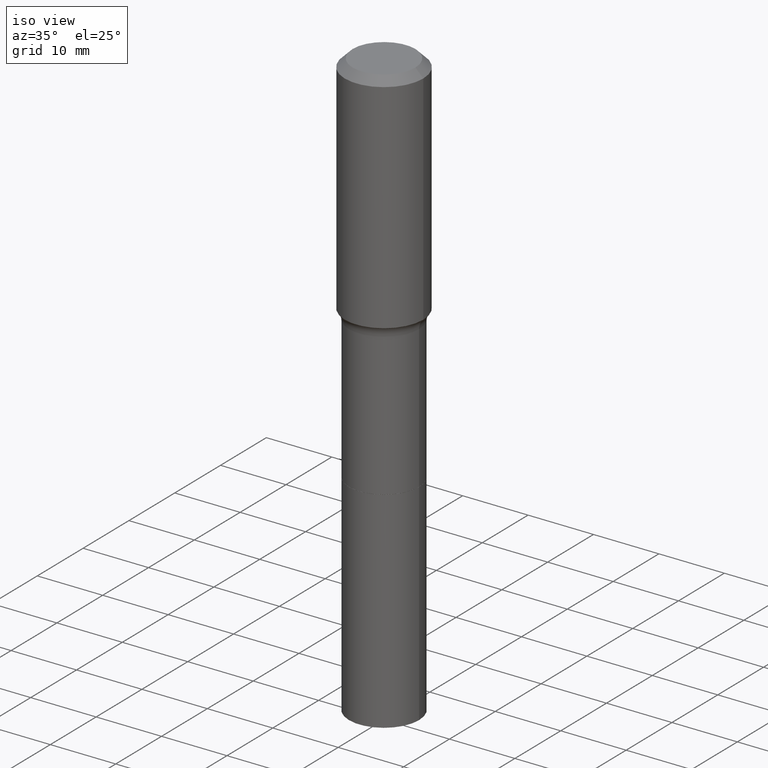
[diagram: clean part render]
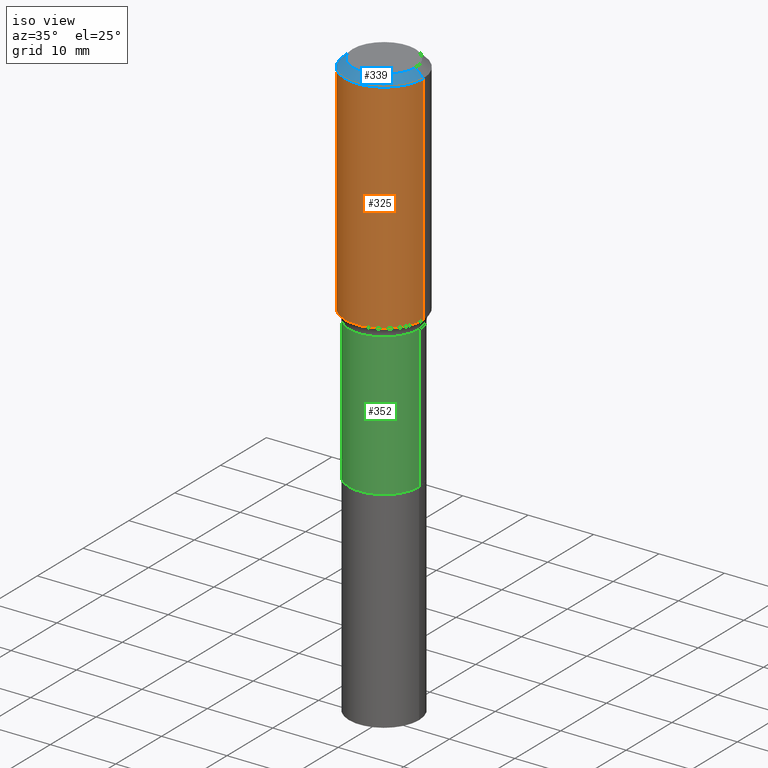
[diagram: same view with three faces highlighted in distinct colors, each labeled with its STEP entity id]
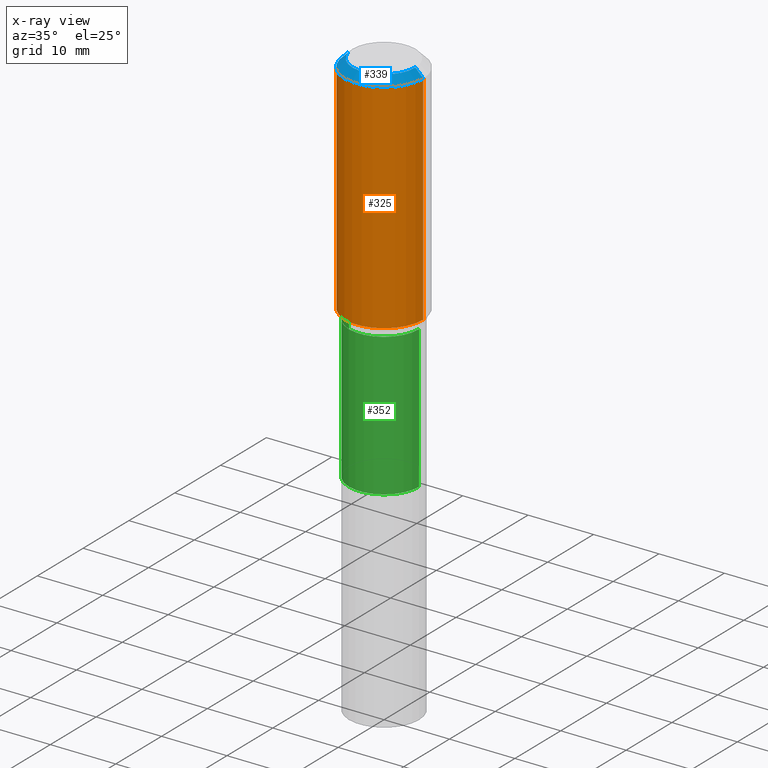
[diagram: x-ray of the same camera — body ghosted, the three highlighted faces saturated]
A machine part, iso view with three faces highlighted in distinct colors.
The next image is the same camera in x-ray (body ghosted, the three faces saturated) — at least one of them is partly hidden behind the body in this view.
Their STEP definitions:

[orange] entity #325 — the highlighted cylindrical surface (partial cylindrical patch) has radius 5.9995 mm, axis along (-0, 0, 1).
#15 = VERTEX_POINT ( 'NONE', #225 ) ;
#17 = CARTESIAN_POINT ( 'NONE',  ( 3.322682559777889075E-29, -4.743910093239522183E-15, -1.358709852022681019 ) ) ;
#23 = EDGE_CURVE ( 'NONE', #499, #44, #106, .T. ) ;
#26 = CARTESIAN_POINT ( 'NONE',  ( 0.2362000000000000766, -1.649375784469496722E-15, 1.151752954443000368E-29 ) ) ;
#41 = EDGE_CURVE ( 'NONE', #84, #15, #382, .T. ) ;
#43 = EDGE_CURVE ( 'NONE', #499, #84, #155, .T. ) ;
#44 = VERTEX_POINT ( 'NONE', #221 ) ;
#49 = CARTESIAN_POINT ( 'NONE',  ( -0.2362000000000001598, -3.065608151374164211E-15, -1.358709852022681019 ) ) ;
#59 = DIRECTION ( 'NONE',  ( -2.445468806185136877E-29, 3.491481338843145188E-15, 1.000000000000000000 ) ) ;
#66 = VECTOR ( 'NONE', #306, 39.37007874015748143 ) ;
#75 = CARTESIAN_POINT ( 'NONE',  ( 1.155239464041865682E-30, -1.649375784469512105E-16, -0.04724000000000028870 ) ) ;
#84 = VERTEX_POINT ( 'NONE', #347 ) ;
#97 = CYLINDRICAL_SURFACE ( 'NONE', #261, 0.2362000000000000766 ) ;
#98 = ORIENTED_EDGE ( 'NONE', *, *, #23, .F. ) ;
#106 = LINE ( 'NONE', #416, #66 ) ;
#110 = ORIENTED_EDGE ( 'NONE', *, *, #41, .T. ) ;
#155 = CIRCLE ( 'NONE', #491, 0.2362000000000001598 ) ;
#173 = VECTOR ( 'NONE', #59, 39.37007874015748143 ) ;
#175 = ORIENTED_EDGE ( 'NONE', *, *, #278, .F. ) ;
#179 = DIRECTION ( 'NONE',  ( -2.445468806185136597E-29, 3.491481338843145583E-15, 1.000000000000000000 ) ) ;
#188 = DIRECTION ( 'NONE',  ( 1.000000000000000000, -6.982962677686268288E-15, 0.000000000000000000 ) ) ;
#203 = EDGE_LOOP ( 'NONE', ( #98, #378, #110, #175 ) ) ;
#204 = AXIS2_PLACEMENT_3D ( 'NONE', #75, #517, #277 ) ;
#220 = FACE_OUTER_BOUND ( 'NONE', #203, .T. ) ;
#221 = CARTESIAN_POINT ( 'NONE',  ( -0.2361999999999999933, -7.761218939778795629E-16, -0.04724000000000028870 ) ) ;
#225 = CARTESIAN_POINT ( 'NONE',  ( 0.2361999999999999933, -1.814313362916447440E-15, -0.04724000000000028870 ) ) ;
#261 = AXIS2_PLACEMENT_3D ( 'NONE', #422, #464, #511 ) ;
#277 = DIRECTION ( 'NONE',  ( 1.000000000000000000, -6.982962677686266711E-15, 0.000000000000000000 ) ) ;
#278 = EDGE_CURVE ( 'NONE', #44, #15, #282, .T. ) ;
#282 = CIRCLE ( 'NONE', #204, 0.2361999999999999933 ) ;
#306 = DIRECTION ( 'NONE',  ( -2.445468806185136877E-29, 3.491481338843145188E-15, 1.000000000000000000 ) ) ;
#325 = ADVANCED_FACE ( 'NONE', ( #220 ), #97, .T. ) ;
#347 = CARTESIAN_POINT ( 'NONE',  ( 0.2362000000000001598, -6.393285877709018708E-15, -1.358709852022681019 ) ) ;
#378 = ORIENTED_EDGE ( 'NONE', *, *, #43, .T. ) ;
#382 = LINE ( 'NONE', #26, #173 ) ;
#416 = CARTESIAN_POINT ( 'NONE',  ( -0.2362000000000000766, 1.678301941865357183E-15, -1.161852468318209177E-29 ) ) ;
#422 = CARTESIAN_POINT ( 'NONE',  ( 0.000000000000000000, 0.000000000000000000, 0.000000000000000000 ) ) ;
#464 = DIRECTION ( 'NONE',  ( -2.445468806185136597E-29, 3.491481338843145583E-15, 1.000000000000000000 ) ) ;
#491 = AXIS2_PLACEMENT_3D ( 'NONE', #17, #179, #188 ) ;
#499 = VERTEX_POINT ( 'NONE', #49 ) ;
#511 = DIRECTION ( 'NONE',  ( 1.000000000000000000, -6.982962677686266711E-15, 4.876176775795935793E-29 ) ) ;
#517 = DIRECTION ( 'NONE',  ( -2.445468806185136597E-29, 3.491481338843145583E-15, 1.000000000000000000 ) ) ;

[blue] entity #339 — the highlighted conical surface has half-angle 45 deg.
#15 = VERTEX_POINT ( 'NONE', #225 ) ;
#21 = FACE_OUTER_BOUND ( 'NONE', #148, .T. ) ;
#29 = CARTESIAN_POINT ( 'NONE',  ( 1.155239464041865682E-30, -1.649375784469512105E-16, -0.04724000000000028870 ) ) ;
#44 = VERTEX_POINT ( 'NONE', #221 ) ;
#47 = EDGE_CURVE ( 'NONE', #494, #125, #111, .T. ) ;
#52 = DIRECTION ( 'NONE',  ( -1.000000000000000000, 6.982962677686266711E-15, 0.000000000000000000 ) ) ;
#75 = CARTESIAN_POINT ( 'NONE',  ( 1.155239464041865682E-30, -1.649375784469512105E-16, -0.04724000000000028870 ) ) ;
#107 = LINE ( 'NONE', #266, #132 ) ;
#111 = CIRCLE ( 'NONE', #426, 0.1889600000000000168 ) ;
#122 = ORIENTED_EDGE ( 'NONE', *, *, #516, .F. ) ;
#125 = VERTEX_POINT ( 'NONE', #341 ) ;
#132 = VECTOR ( 'NONE', #424, 39.37007874015748143 ) ;
#145 = EDGE_CURVE ( 'NONE', #494, #44, #463, .T. ) ;
#147 = DIRECTION ( 'NONE',  ( 2.445468806185136597E-29, -3.491481338843145583E-15, -1.000000000000000000 ) ) ;
#148 = EDGE_LOOP ( 'NONE', ( #122, #177, #328, #398 ) ) ;
#177 = ORIENTED_EDGE ( 'NONE', *, *, #47, .F. ) ;
#178 = CARTESIAN_POINT ( 'NONE',  ( -0.1889600000000000168, 1.401969416799070942E-15, 3.855188123706346622E-18 ) ) ;
#182 = CARTESIAN_POINT ( 'NONE',  ( -0.2361999999999999933, 1.484438206022545019E-15, -0.04724000000000028870 ) ) ;
#204 = AXIS2_PLACEMENT_3D ( 'NONE', #75, #517, #277 ) ;
#213 = DIRECTION ( 'NONE',  ( -2.445468806185136597E-29, 3.491481338843145583E-15, 1.000000000000000000 ) ) ;
#221 = CARTESIAN_POINT ( 'NONE',  ( -0.2361999999999999933, -7.761218939778795629E-16, -0.04724000000000028870 ) ) ;
#225 = CARTESIAN_POINT ( 'NONE',  ( 0.2361999999999999933, -1.814313362916447440E-15, -0.04724000000000028870 ) ) ;
#250 = AXIS2_PLACEMENT_3D ( 'NONE', #29, #147, #52 ) ;
#266 = CARTESIAN_POINT ( 'NONE',  ( 0.2361999999999999933, -1.785387205520586782E-15, -0.04724000000000028870 ) ) ;
#273 = DIRECTION ( 'NONE',  ( -0.7071067811865453523, 2.468850131082234184E-15, -0.7071067811865496822 ) ) ;
#277 = DIRECTION ( 'NONE',  ( 1.000000000000000000, -6.982962677686266711E-15, 0.000000000000000000 ) ) ;
#278 = EDGE_CURVE ( 'NONE', #44, #15, #282, .T. ) ;
#282 = CIRCLE ( 'NONE', #204, 0.2361999999999999933 ) ;
#328 = ORIENTED_EDGE ( 'NONE', *, *, #145, .T. ) ;
#339 = ADVANCED_FACE ( 'NONE', ( #21 ), #504, .T. ) ;
#341 = CARTESIAN_POINT ( 'NONE',  ( 0.1889600000000000168, -1.540873453589747738E-15, 3.855188123725863225E-18 ) ) ;
#346 = CARTESIAN_POINT ( 'NONE',  ( -9.427742298522546243E-47, 1.346031739168365344E-32, 3.855188123715862256E-18 ) ) ;
#398 = ORIENTED_EDGE ( 'NONE', *, *, #278, .T. ) ;
#424 = DIRECTION ( 'NONE',  ( 0.7071067811865453523, -7.319954787623248157E-15, -0.7071067811865496822 ) ) ;
#426 = AXIS2_PLACEMENT_3D ( 'NONE', #346, #213, #508 ) ;
#463 = LINE ( 'NONE', #182, #502 ) ;
#494 = VERTEX_POINT ( 'NONE', #178 ) ;
#502 = VECTOR ( 'NONE', #273, 39.37007874015748143 ) ;
#504 = CONICAL_SURFACE ( 'NONE', #250, 0.2361999999999999933, 0.7853981633974452814 ) ;
#508 = DIRECTION ( 'NONE',  ( 1.000000000000000000, -6.982962677686266711E-15, 4.876185090822587894E-29 ) ) ;
#516 = EDGE_CURVE ( 'NONE', #125, #15, #107, .T. ) ;
#517 = DIRECTION ( 'NONE',  ( -2.445468806185136597E-29, 3.491481338843145583E-15, 1.000000000000000000 ) ) ;

[green] entity #352 — the highlighted cylindrical surface (partial cylindrical patch) has radius 5.3581 mm, axis along (-0, 0, 1).
#6 = EDGE_CURVE ( 'NONE', #503, #441, #263, .T. ) ;
#14 = CIRCLE ( 'NONE', #315, 0.2109499999999999154 ) ;
#33 = AXIS2_PLACEMENT_3D ( 'NONE', #420, #53, #65 ) ;
#36 = EDGE_CURVE ( 'NONE', #503, #490, #80, .T. ) ;
#53 = DIRECTION ( 'NONE',  ( -2.445468806185136597E-29, 3.491481338843145583E-15, 1.000000000000000000 ) ) ;
#64 = FACE_OUTER_BOUND ( 'NONE', #324, .T. ) ;
#65 = DIRECTION ( 'NONE',  ( 1.000000000000000000, -6.982962677686261977E-15, 0.000000000000000000 ) ) ;
#80 = CIRCLE ( 'NONE', #33, 0.2109499999999999986 ) ;
#93 = DIRECTION ( 'NONE',  ( -2.445468806185136877E-29, 3.491481338843145188E-15, 1.000000000000000000 ) ) ;
#103 = ORIENTED_EDGE ( 'NONE', *, *, #449, .F. ) ;
#109 = DIRECTION ( 'NONE',  ( -2.445468806185136597E-29, 3.491481338843145583E-15, 1.000000000000000000 ) ) ;
#118 = EDGE_CURVE ( 'NONE', #490, #168, #514, .T. ) ;
#121 = VECTOR ( 'NONE', #380, 39.37007874015748143 ) ;
#140 = DIRECTION ( 'NONE',  ( -2.445468806185136597E-29, 3.491481338843145583E-15, 1.000000000000000000 ) ) ;
#154 = CYLINDRICAL_SURFACE ( 'NONE', #402, 0.2109499999999999709 ) ;
#168 = VERTEX_POINT ( 'NONE', #260 ) ;
#190 = CARTESIAN_POINT ( 'NONE',  ( 0.2109499999999999709, -1.473055976857917762E-15, 1.028629490854152488E-29 ) ) ;
#201 = ORIENTED_EDGE ( 'NONE', *, *, #6, .F. ) ;
#207 = ORIENTED_EDGE ( 'NONE', *, *, #118, .T. ) ;
#211 = VECTOR ( 'NONE', #93, 39.37007874015748143 ) ;
#230 = ORIENTED_EDGE ( 'NONE', *, *, #36, .T. ) ;
#256 = CARTESIAN_POINT ( 'NONE',  ( -0.2109499999999999709, 1.498889901085931135E-15, -1.037649357289272242E-29 ) ) ;
#260 = CARTESIAN_POINT ( 'NONE',  ( 0.2109499999999999154, -6.421532478400307219E-15, -1.417300000000000004 ) ) ;
#263 = LINE ( 'NONE', #256, #211 ) ;
#268 = CARTESIAN_POINT ( 'NONE',  ( 0.000000000000000000, 0.000000000000000000, 0.000000000000000000 ) ) ;
#295 = CARTESIAN_POINT ( 'NONE',  ( 0.2109499999999999986, -9.415477726458304168E-15, -2.274799999999999933 ) ) ;
#315 = AXIS2_PLACEMENT_3D ( 'NONE', #457, #140, #329 ) ;
#324 = EDGE_LOOP ( 'NONE', ( #201, #230, #207, #103 ) ) ;
#329 = DIRECTION ( 'NONE',  ( 1.000000000000000000, -6.982962677686265133E-15, 0.000000000000000000 ) ) ;
#352 = ADVANCED_FACE ( 'NONE', ( #64 ), #154, .T. ) ;
#380 = DIRECTION ( 'NONE',  ( -2.445468806185136877E-29, 3.491481338843145188E-15, 1.000000000000000000 ) ) ;
#402 = AXIS2_PLACEMENT_3D ( 'NONE', #268, #109, #427 ) ;
#420 = CARTESIAN_POINT ( 'NONE',  ( 5.562952440309948637E-29, -7.942421749600386603E-15, -2.274799999999999933 ) ) ;
#427 = DIRECTION ( 'NONE',  ( 1.000000000000000000, -6.982962677686266711E-15, 4.876176775795935793E-29 ) ) ;
#441 = VERTEX_POINT ( 'NONE', #505 ) ;
#449 = EDGE_CURVE ( 'NONE', #441, #168, #14, .T. ) ;
#457 = CARTESIAN_POINT ( 'NONE',  ( 3.465962939006193759E-29, -4.948476501542390442E-15, -1.417300000000000004 ) ) ;
#490 = VERTEX_POINT ( 'NONE', #295 ) ;
#492 = CARTESIAN_POINT ( 'NONE',  ( -0.2109499999999999986, -4.946559224485457388E-15, -2.274799999999999933 ) ) ;
#503 = VERTEX_POINT ( 'NONE', #492 ) ;
#505 = CARTESIAN_POINT ( 'NONE',  ( -0.2109499999999999154, -4.946559224485457388E-15, -1.417300000000000004 ) ) ;
#514 = LINE ( 'NONE', #190, #121 ) ;